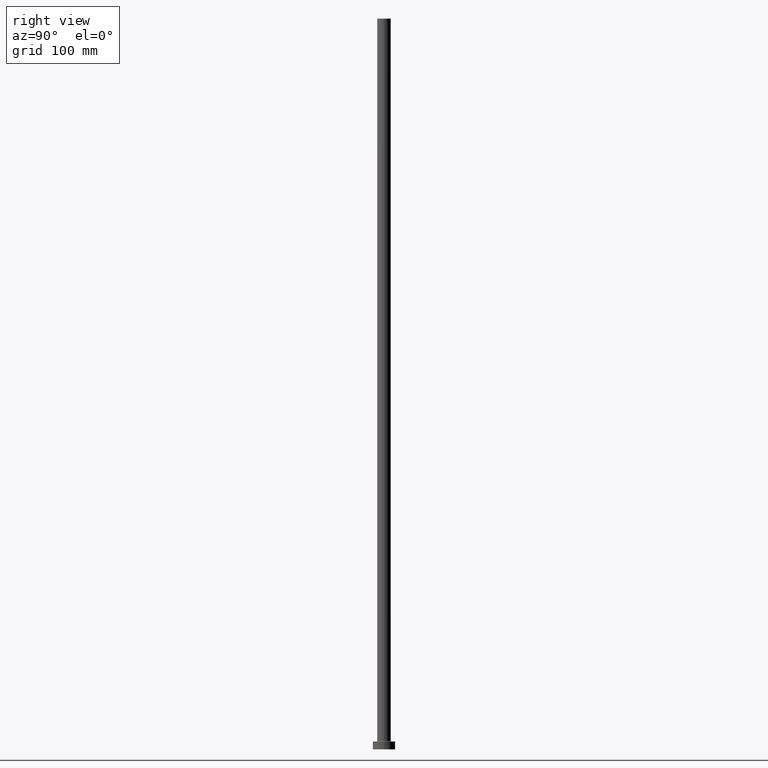
[diagram: clean part render]
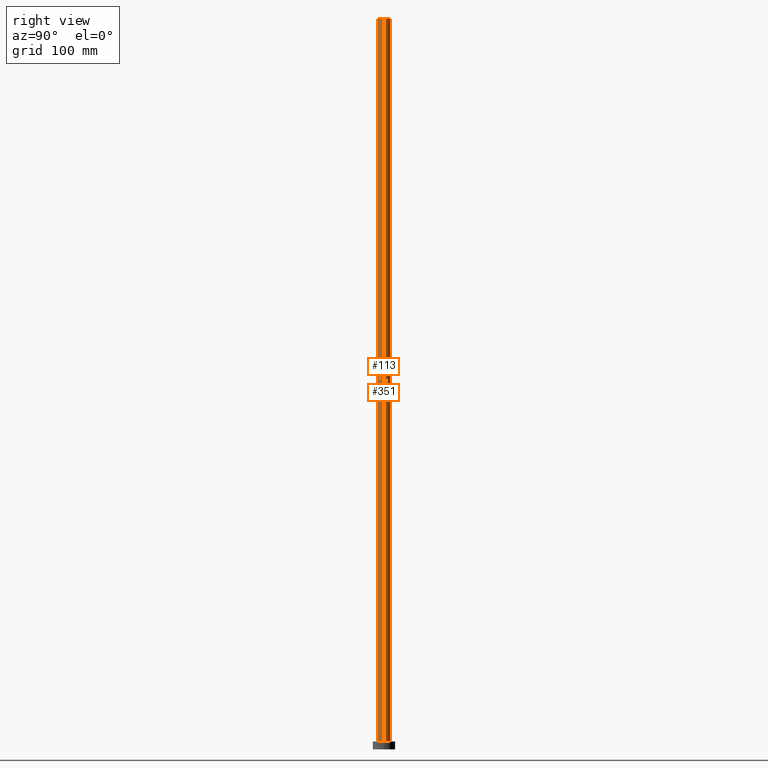
[diagram: same view with one multi-face feature highlighted, each face labeled with its STEP entity id]
A machine part, right view. The highlighted faces form ONE feature: a constant-radius fillet chain: 2 tangent blend faces with common blend radius 6 mm. The faces share edges in the B-rep.
Their STEP definitions:
[1] entity #113 (Cylinder):
#1 = LINE ( 'NONE', #354, #49 ) ;
#6 = CARTESIAN_POINT ( 'NONE',  ( -6.000000000000000888, 0.000000000000000000, 7.499999999999951150 ) ) ;
#11 = VERTEX_POINT ( 'NONE', #367 ) ;
#16 = CARTESIAN_POINT ( 'NONE',  ( 0.000000000000000000, 0.000000000000000000, 650.0000000000000000 ) ) ;
#33 = VECTOR ( 'NONE', #155, 1000.000000000000000 ) ;
#42 = LINE ( 'NONE', #290, #33 ) ;
#49 = VECTOR ( 'NONE', #147, 1000.000000000000000 ) ;
#61 = VERTEX_POINT ( 'NONE', #168 ) ;
#83 = CARTESIAN_POINT ( 'NONE',  ( 6.000000000000000888, 7.347880794884120722E-16, 650.0000000000000000 ) ) ;
#86 = EDGE_LOOP ( 'NONE', ( #325, #396, #274, #203 ) ) ;
#110 = CARTESIAN_POINT ( 'NONE',  ( 0.000000000000000000, 0.000000000000000000, 650.0000000000000000 ) ) ;
#112 = DIRECTION ( 'NONE',  ( 0.000000000000000000, 0.000000000000000000, 1.000000000000000000 ) ) ;
#113 = ADVANCED_FACE ( 'NONE', ( #306 ), #411, .T. ) ;
#147 = DIRECTION ( 'NONE',  ( -0.000000000000000000, -0.000000000000000000, -1.000000000000000000 ) ) ;
#155 = DIRECTION ( 'NONE',  ( -0.000000000000000000, -0.000000000000000000, -1.000000000000000000 ) ) ;
#168 = CARTESIAN_POINT ( 'NONE',  ( 6.000000000000000888, 7.347880794884120722E-16, 7.499999999999951150 ) ) ;
#180 = EDGE_CURVE ( 'NONE', #379, #61, #270, .T. ) ;
#192 = AXIS2_PLACEMENT_3D ( 'NONE', #353, #112, #202 ) ;
#202 = DIRECTION ( 'NONE',  ( 1.000000000000000000, 0.000000000000000000, 0.000000000000000000 ) ) ;
#203 = ORIENTED_EDGE ( 'NONE', *, *, #180, .T. ) ;
#242 = DIRECTION ( 'NONE',  ( 0.000000000000000000, 0.000000000000000000, 1.000000000000000000 ) ) ;
#247 = AXIS2_PLACEMENT_3D ( 'NONE', #110, #242, #435 ) ;
#270 = CIRCLE ( 'NONE', #192, 6.000000000000000888 ) ;
#274 = ORIENTED_EDGE ( 'NONE', *, *, #310, .T. ) ;
#290 = CARTESIAN_POINT ( 'NONE',  ( 6.000000000000000888, 7.347880794884120722E-16, 650.0000000000000000 ) ) ;
#294 = EDGE_CURVE ( 'NONE', #11, #439, #345, .T. ) ;
#306 = FACE_OUTER_BOUND ( 'NONE', #86, .T. ) ;
#310 = EDGE_CURVE ( 'NONE', #11, #379, #1, .T. ) ;
#317 = EDGE_CURVE ( 'NONE', #439, #61, #42, .T. ) ;
#325 = ORIENTED_EDGE ( 'NONE', *, *, #317, .F. ) ;
#345 = CIRCLE ( 'NONE', #247, 6.000000000000000888 ) ;
#353 = CARTESIAN_POINT ( 'NONE',  ( 0.000000000000000000, 0.000000000000000000, 7.499999999999951150 ) ) ;
#354 = CARTESIAN_POINT ( 'NONE',  ( -6.000000000000000888, 0.000000000000000000, 650.0000000000000000 ) ) ;
#367 = CARTESIAN_POINT ( 'NONE',  ( -6.000000000000000888, 0.000000000000000000, 650.0000000000000000 ) ) ;
#379 = VERTEX_POINT ( 'NONE', #6 ) ;
#385 = DIRECTION ( 'NONE',  ( -0.000000000000000000, -0.000000000000000000, -1.000000000000000000 ) ) ;
#396 = ORIENTED_EDGE ( 'NONE', *, *, #294, .F. ) ;
#411 = CYLINDRICAL_SURFACE ( 'NONE', #433, 6.000000000000000888 ) ;
#423 = DIRECTION ( 'NONE',  ( -1.000000000000000000, 0.000000000000000000, 0.000000000000000000 ) ) ;
#433 = AXIS2_PLACEMENT_3D ( 'NONE', #16, #385, #423 ) ;
#435 = DIRECTION ( 'NONE',  ( 1.000000000000000000, 0.000000000000000000, 0.000000000000000000 ) ) ;
#439 = VERTEX_POINT ( 'NONE', #83 ) ;
[2] entity #351 (Cylinder):
#1 = LINE ( 'NONE', #354, #49 ) ;
#6 = CARTESIAN_POINT ( 'NONE',  ( -6.000000000000000888, 0.000000000000000000, 7.499999999999951150 ) ) ;
#11 = VERTEX_POINT ( 'NONE', #367 ) ;
#23 = CARTESIAN_POINT ( 'NONE',  ( 0.000000000000000000, 0.000000000000000000, 650.0000000000000000 ) ) ;
#33 = VECTOR ( 'NONE', #155, 1000.000000000000000 ) ;
#40 = CIRCLE ( 'NONE', #413, 6.000000000000000888 ) ;
#42 = LINE ( 'NONE', #290, #33 ) ;
#49 = VECTOR ( 'NONE', #147, 1000.000000000000000 ) ;
#61 = VERTEX_POINT ( 'NONE', #168 ) ;
#63 = AXIS2_PLACEMENT_3D ( 'NONE', #23, #165, #447 ) ;
#66 = AXIS2_PLACEMENT_3D ( 'NONE', #214, #390, #179 ) ;
#78 = EDGE_CURVE ( 'NONE', #439, #11, #298, .T. ) ;
#83 = CARTESIAN_POINT ( 'NONE',  ( 6.000000000000000888, 7.347880794884120722E-16, 650.0000000000000000 ) ) ;
#85 = CYLINDRICAL_SURFACE ( 'NONE', #66, 6.000000000000000888 ) ;
#147 = DIRECTION ( 'NONE',  ( -0.000000000000000000, -0.000000000000000000, -1.000000000000000000 ) ) ;
#155 = DIRECTION ( 'NONE',  ( -0.000000000000000000, -0.000000000000000000, -1.000000000000000000 ) ) ;
#165 = DIRECTION ( 'NONE',  ( 0.000000000000000000, 0.000000000000000000, 1.000000000000000000 ) ) ;
#168 = CARTESIAN_POINT ( 'NONE',  ( 6.000000000000000888, 7.347880794884120722E-16, 7.499999999999951150 ) ) ;
#179 = DIRECTION ( 'NONE',  ( -1.000000000000000000, 0.000000000000000000, 0.000000000000000000 ) ) ;
#188 = DIRECTION ( 'NONE',  ( 1.000000000000000000, 0.000000000000000000, 0.000000000000000000 ) ) ;
#214 = CARTESIAN_POINT ( 'NONE',  ( 0.000000000000000000, 0.000000000000000000, 650.0000000000000000 ) ) ;
#227 = EDGE_LOOP ( 'NONE', ( #365, #269, #414, #429 ) ) ;
#269 = ORIENTED_EDGE ( 'NONE', *, *, #317, .T. ) ;
#283 = CARTESIAN_POINT ( 'NONE',  ( 0.000000000000000000, 0.000000000000000000, 7.499999999999951150 ) ) ;
#290 = CARTESIAN_POINT ( 'NONE',  ( 6.000000000000000888, 7.347880794884120722E-16, 650.0000000000000000 ) ) ;
#298 = CIRCLE ( 'NONE', #63, 6.000000000000000888 ) ;
#310 = EDGE_CURVE ( 'NONE', #11, #379, #1, .T. ) ;
#315 = FACE_OUTER_BOUND ( 'NONE', #227, .T. ) ;
#317 = EDGE_CURVE ( 'NONE', #439, #61, #42, .T. ) ;
#351 = ADVANCED_FACE ( 'NONE', ( #315 ), #85, .T. ) ;
#354 = CARTESIAN_POINT ( 'NONE',  ( -6.000000000000000888, 0.000000000000000000, 650.0000000000000000 ) ) ;
#360 = DIRECTION ( 'NONE',  ( 0.000000000000000000, 0.000000000000000000, 1.000000000000000000 ) ) ;
#363 = EDGE_CURVE ( 'NONE', #61, #379, #40, .T. ) ;
#365 = ORIENTED_EDGE ( 'NONE', *, *, #78, .F. ) ;
#367 = CARTESIAN_POINT ( 'NONE',  ( -6.000000000000000888, 0.000000000000000000, 650.0000000000000000 ) ) ;
#379 = VERTEX_POINT ( 'NONE', #6 ) ;
#390 = DIRECTION ( 'NONE',  ( -0.000000000000000000, -0.000000000000000000, -1.000000000000000000 ) ) ;
#413 = AXIS2_PLACEMENT_3D ( 'NONE', #283, #360, #188 ) ;
#414 = ORIENTED_EDGE ( 'NONE', *, *, #363, .T. ) ;
#429 = ORIENTED_EDGE ( 'NONE', *, *, #310, .F. ) ;
#439 = VERTEX_POINT ( 'NONE', #83 ) ;
#447 = DIRECTION ( 'NONE',  ( 1.000000000000000000, 0.000000000000000000, 0.000000000000000000 ) ) ;